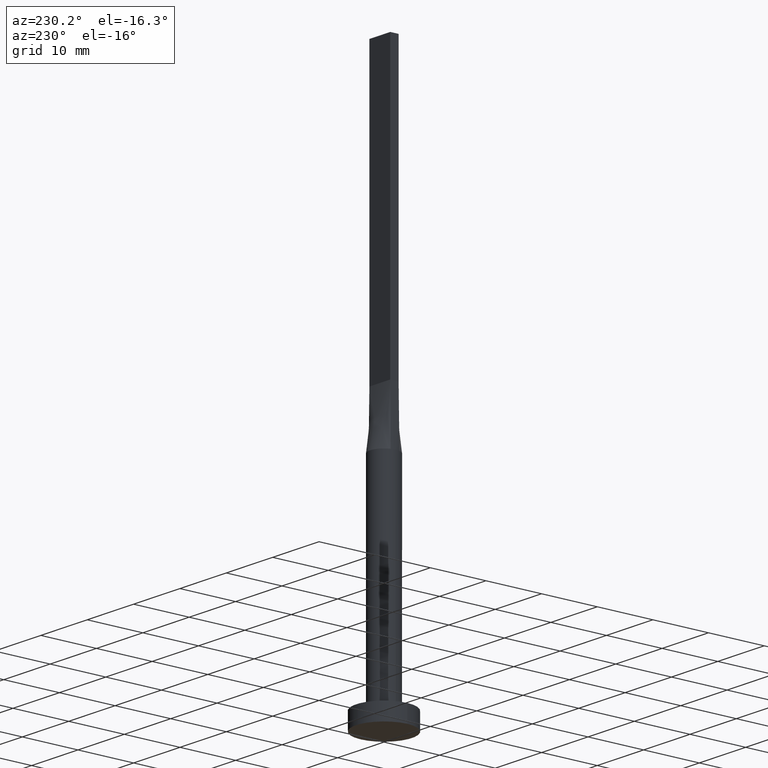
[diagram: clean part render]
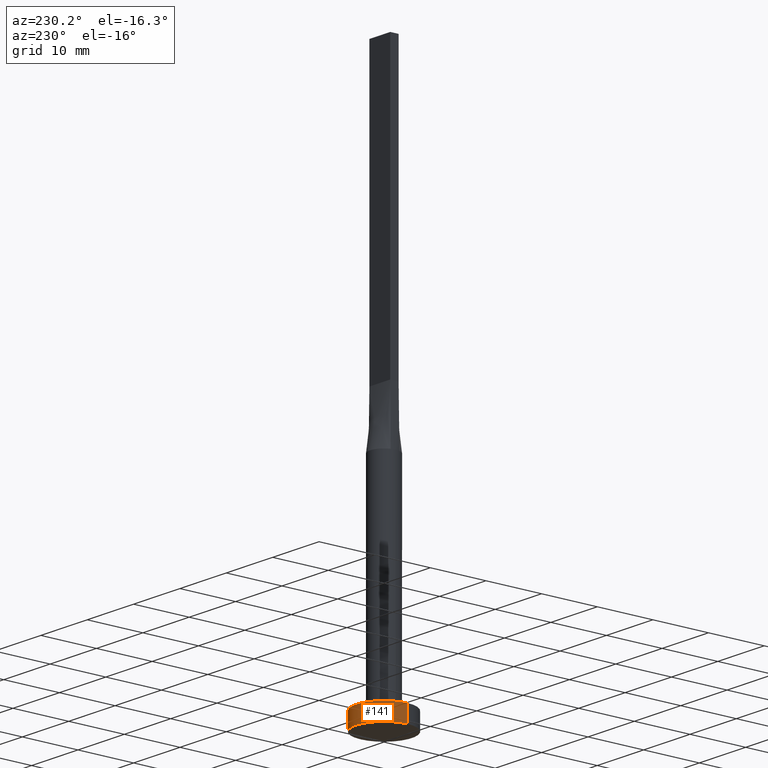
[diagram: same view with one face highlighted and labeled with its STEP entity id]
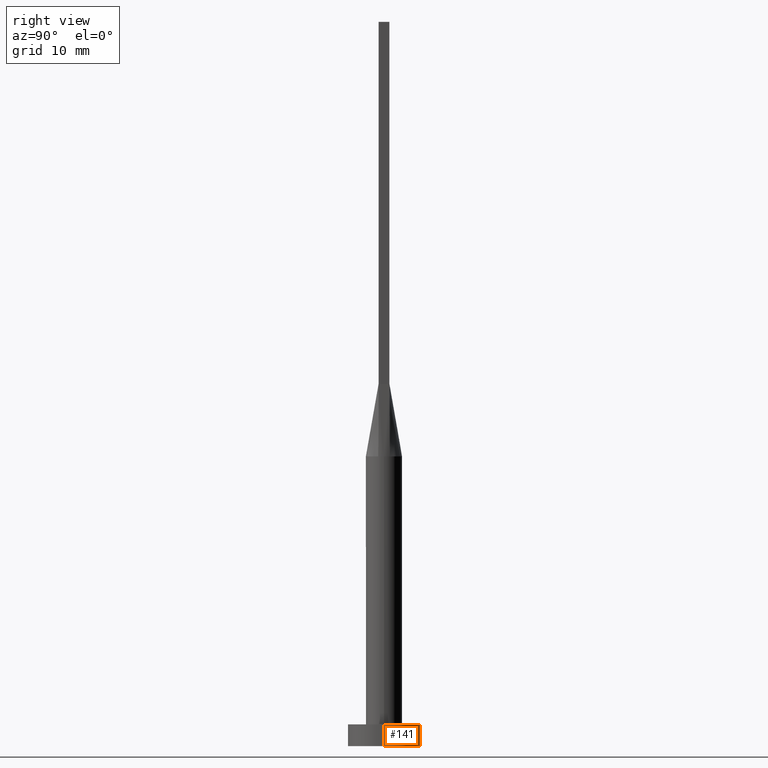
[diagram: same view with one face highlighted and labeled with its STEP entity id]
A machine part, auxiliary view. The second image highlights one B-rep face of the part: STEP entity #141.
A second angle (right view) of the same face is appended — the face is thin or edge-on in the first view.
In plain terms, the highlighted cylindrical surface (edge-blend (fillet) strip) has radius 5 mm, axis along (-0, -0, -1).
Its self-contained STEP definition (entity closure, byte-faithful):
#1 = CYLINDRICAL_SURFACE ( 'NONE', #577, 5.000000000000000000 ) ;
#10 = VERTEX_POINT ( 'NONE', #525 ) ;
#55 = VERTEX_POINT ( 'NONE', #84 ) ;
#84 = CARTESIAN_POINT ( 'NONE',  ( 5.000000000000000000, 6.123233995736766282E-16, 3.000000000000000000 ) ) ;
#86 = DIRECTION ( 'NONE',  ( 1.000000000000000000, 0.000000000000000000, 0.000000000000000000 ) ) ;
#105 = ORIENTED_EDGE ( 'NONE', *, *, #120, .F. ) ;
#120 = EDGE_CURVE ( 'NONE', #55, #285, #354, .T. ) ;
#134 = CARTESIAN_POINT ( 'NONE',  ( 0.000000000000000000, 0.000000000000000000, 3.000000000000000000 ) ) ;
#136 = DIRECTION ( 'NONE',  ( 1.000000000000000000, 0.000000000000000000, 0.000000000000000000 ) ) ;
#138 = FACE_OUTER_BOUND ( 'NONE', #289, .T. ) ;
#141 = ADVANCED_FACE ( 'NONE', ( #138 ), #1, .T. ) ;
#142 = DIRECTION ( 'NONE',  ( -0.000000000000000000, -0.000000000000000000, -1.000000000000000000 ) ) ;
#180 = LINE ( 'NONE', #492, #245 ) ;
#184 = DIRECTION ( 'NONE',  ( -1.000000000000000000, 0.000000000000000000, 0.000000000000000000 ) ) ;
#186 = EDGE_CURVE ( 'NONE', #55, #10, #180, .T. ) ;
#195 = ORIENTED_EDGE ( 'NONE', *, *, #242, .T. ) ;
#197 = CIRCLE ( 'NONE', #246, 5.000000000000000000 ) ;
#242 = EDGE_CURVE ( 'NONE', #10, #550, #197, .T. ) ;
#245 = VECTOR ( 'NONE', #497, 1000.000000000000000 ) ;
#246 = AXIS2_PLACEMENT_3D ( 'NONE', #365, #488, #86 ) ;
#265 = CARTESIAN_POINT ( 'NONE',  ( 0.000000000000000000, 0.000000000000000000, 3.000000000000000000 ) ) ;
#282 = AXIS2_PLACEMENT_3D ( 'NONE', #265, #371, #136 ) ;
#285 = VERTEX_POINT ( 'NONE', #496 ) ;
#289 = EDGE_LOOP ( 'NONE', ( #105, #482, #195, #460 ) ) ;
#325 = EDGE_CURVE ( 'NONE', #285, #550, #377, .T. ) ;
#336 = DIRECTION ( 'NONE',  ( -0.000000000000000000, -0.000000000000000000, -1.000000000000000000 ) ) ;
#354 = CIRCLE ( 'NONE', #282, 5.000000000000000000 ) ;
#365 = CARTESIAN_POINT ( 'NONE',  ( 0.000000000000000000, 0.000000000000000000, 0.000000000000000000 ) ) ;
#371 = DIRECTION ( 'NONE',  ( 0.000000000000000000, 0.000000000000000000, 1.000000000000000000 ) ) ;
#374 = CARTESIAN_POINT ( 'NONE',  ( -5.000000000000000000, 0.000000000000000000, 3.000000000000000000 ) ) ;
#377 = LINE ( 'NONE', #374, #548 ) ;
#418 = CARTESIAN_POINT ( 'NONE',  ( -5.000000000000000000, 0.000000000000000000, 0.000000000000000000 ) ) ;
#460 = ORIENTED_EDGE ( 'NONE', *, *, #325, .F. ) ;
#482 = ORIENTED_EDGE ( 'NONE', *, *, #186, .T. ) ;
#488 = DIRECTION ( 'NONE',  ( 0.000000000000000000, 0.000000000000000000, 1.000000000000000000 ) ) ;
#492 = CARTESIAN_POINT ( 'NONE',  ( 5.000000000000000000, 6.123233995736766282E-16, 3.000000000000000000 ) ) ;
#496 = CARTESIAN_POINT ( 'NONE',  ( -5.000000000000000000, 0.000000000000000000, 3.000000000000000000 ) ) ;
#497 = DIRECTION ( 'NONE',  ( -0.000000000000000000, -0.000000000000000000, -1.000000000000000000 ) ) ;
#525 = CARTESIAN_POINT ( 'NONE',  ( 5.000000000000000000, 6.123233995736766282E-16, 0.000000000000000000 ) ) ;
#548 = VECTOR ( 'NONE', #336, 1000.000000000000000 ) ;
#550 = VERTEX_POINT ( 'NONE', #418 ) ;
#577 = AXIS2_PLACEMENT_3D ( 'NONE', #134, #142, #184 ) ;